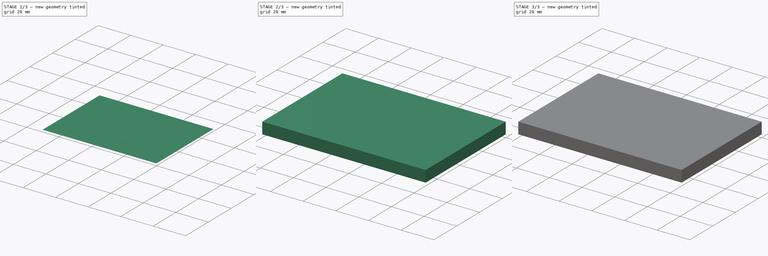
[diagram: build sequence overview — one tinted view per stage of 3, left to right]
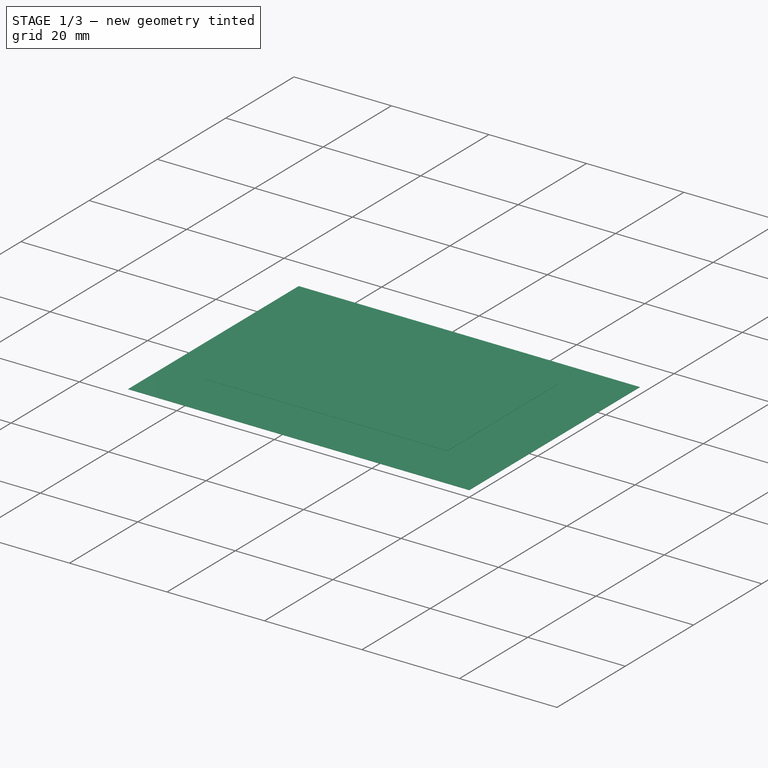
[diagram: stage 1 of 3 — iso view after this stage's code; geometry added in this stage tinted green]
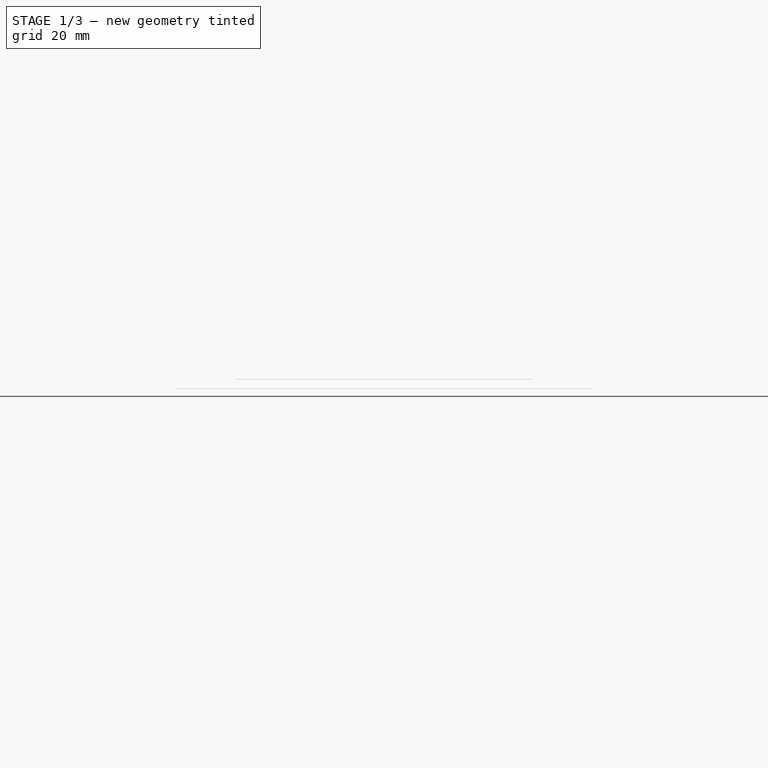
[diagram: stage 1 of 3 — front view after this stage's code; geometry added in this stage tinted green]
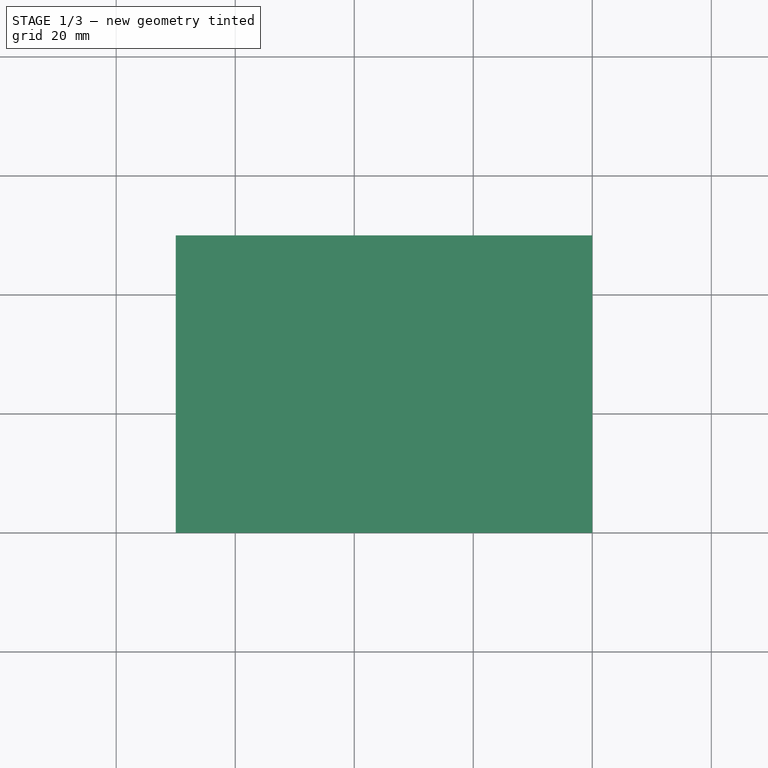
[diagram: stage 1 of 3 — top view after this stage's code; geometry added in this stage tinted green]
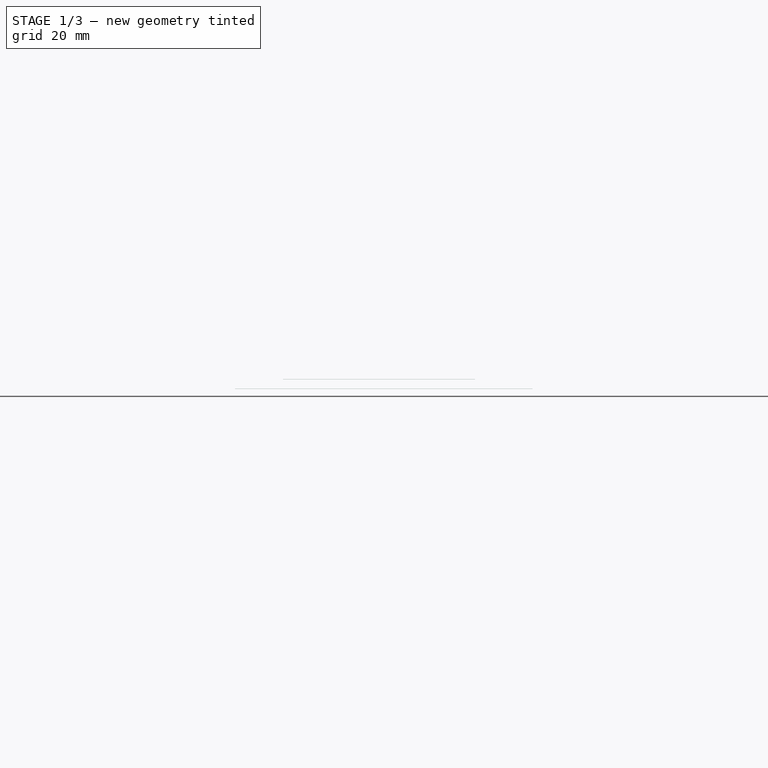
[diagram: stage 1 of 3 — right view after this stage's code; geometry added in this stage tinted green]
FCSTD DOCUMENT  (FreeCAD 0.18R16131 (Git))
Label: Patch Antenna 2
License: All rights reserved
LicenseURL: http://en.wikipedia.org/wiki/All_rights_reserved
objects: Part::Part2DObjectPython×6, Part::Extrusion×6, Sketcher::SketchObject×1, Part::Fuse×1
note: 14 computed .brp shape members not serialized (recipe doc carries the construction recipe); baked Part::Feature solids carry a one-line shape summary decoded from their .brp

FEATURE [Part::Extrusion] Extrude004  label="atnenna"
  Base = -> Rectangle
  Dir = (0,0,1)
  DirMode = 2
  FaceMakerClass = Part::FaceMakerBullseye
  LengthFwd = 0.035
  LengthRev = 0
  Solid = false
  Symmetric = false
FEATURE [Part::Extrusion] Extrude005  label="gnd001"
  Base = -> Rectangle002
  Dir = (0,0,1)
  DirMode = 2
  FaceMakerClass = Part::FaceMakerBullseye
  LengthFwd = 0.035
  LengthRev = 0
  Reversed = true
  Solid = false
  Symmetric = false
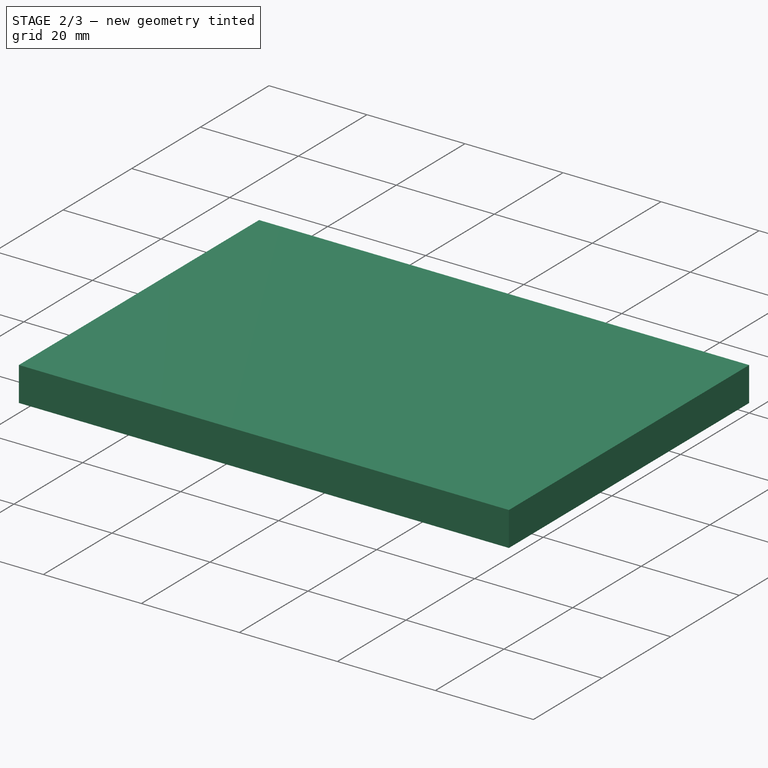
[diagram: stage 2 of 3 — iso view after this stage's code; geometry added in this stage tinted green]
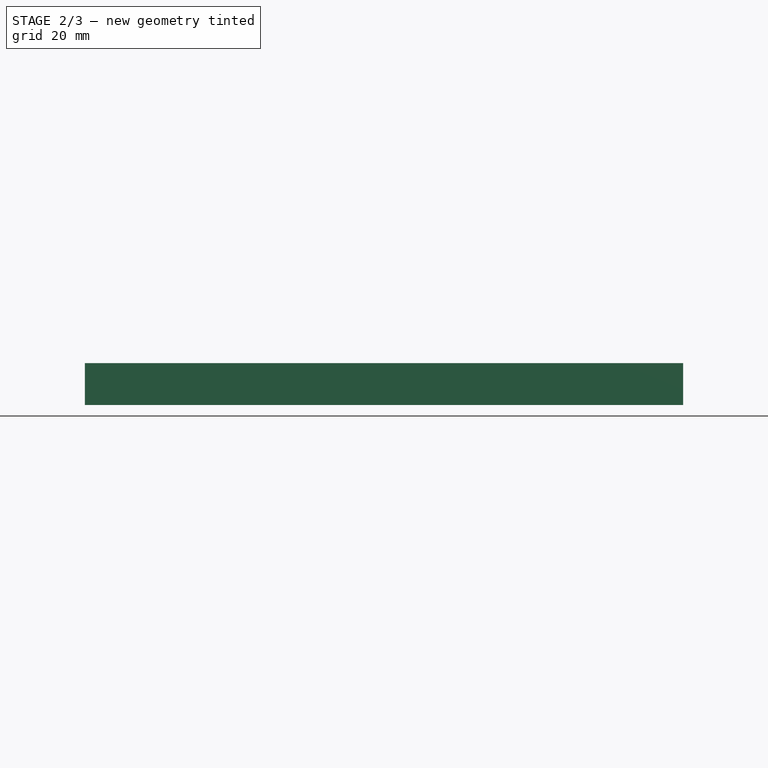
[diagram: stage 2 of 3 — front view after this stage's code; geometry added in this stage tinted green]
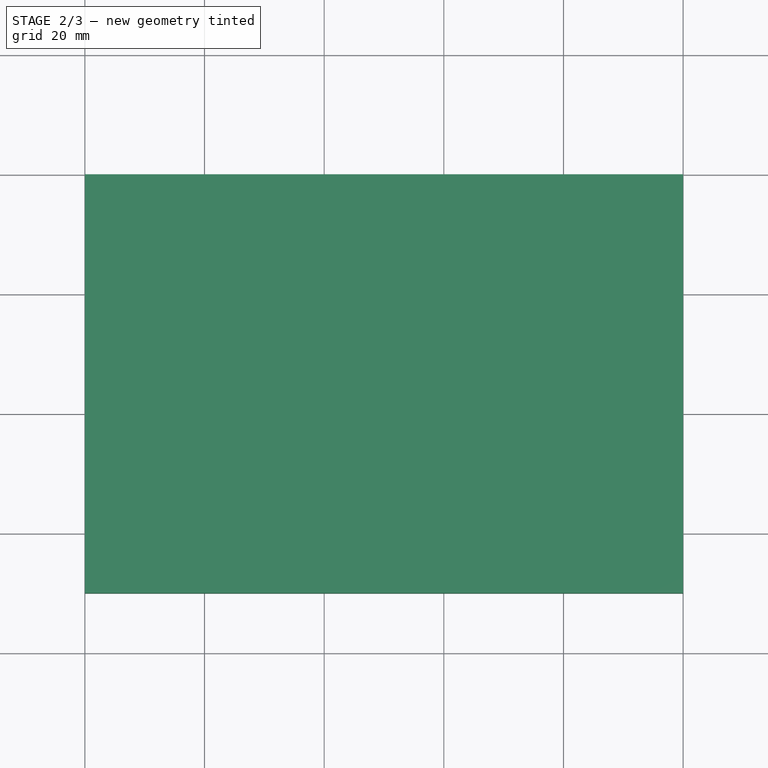
[diagram: stage 2 of 3 — top view after this stage's code; geometry added in this stage tinted green]
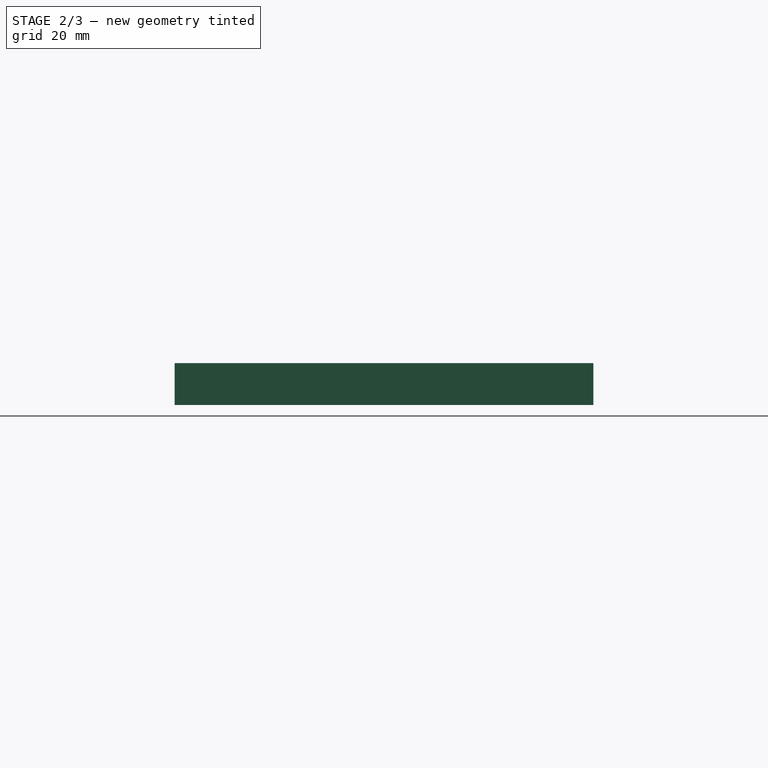
[diagram: stage 2 of 3 — right view after this stage's code; geometry added in this stage tinted green]
FEATURE [Part::Part2DObjectPython] Rectangle004  label="air"  # Draft 2D object (typed FeaturePython)
  ChamferSize = 0
  Columns = 1
  FilletRadius = 0
  Height = 70
  Length = 100
  MakeFace = true
  Placement = pos=(0,-70,0) rot=(0,0,1;0rad)
  Rows = 1
FEATURE [Part::Extrusion] Extrude002  label="air box top"
  Base = -> Rectangle004
  Dir = (0,0,1)
  DirMode = 2
  FaceMakerClass = Part::FaceMakerBullseye
  LengthFwd = 4
  LengthRev = 0
  Solid = false
  Symmetric = false
FEATURE [Part::Part2DObjectPython] Rectangle005  label="air002"  # Draft 2D object (typed FeaturePython)
  ChamferSize = 0
  Columns = 1
  FilletRadius = 0
  Height = 70
  Length = 100
  MakeFace = true
  Placement = pos=(0,-70,0) rot=(0,0,1;0rad)
  Rows = 1
FEATURE [Part::Extrusion] Extrude003  label="air box bottom"
  Base = -> Rectangle005
  Dir = (0,0,1)
  DirMode = 2
  FaceMakerClass = Part::FaceMakerBullseye
  LengthFwd = 3
  LengthRev = 0
  Reversed = true
  Solid = false
  Symmetric = false
FEATURE [Part::Fuse] Fusion  label="air box"
  Base = -> Extrude002
  Tool = -> Extrude003
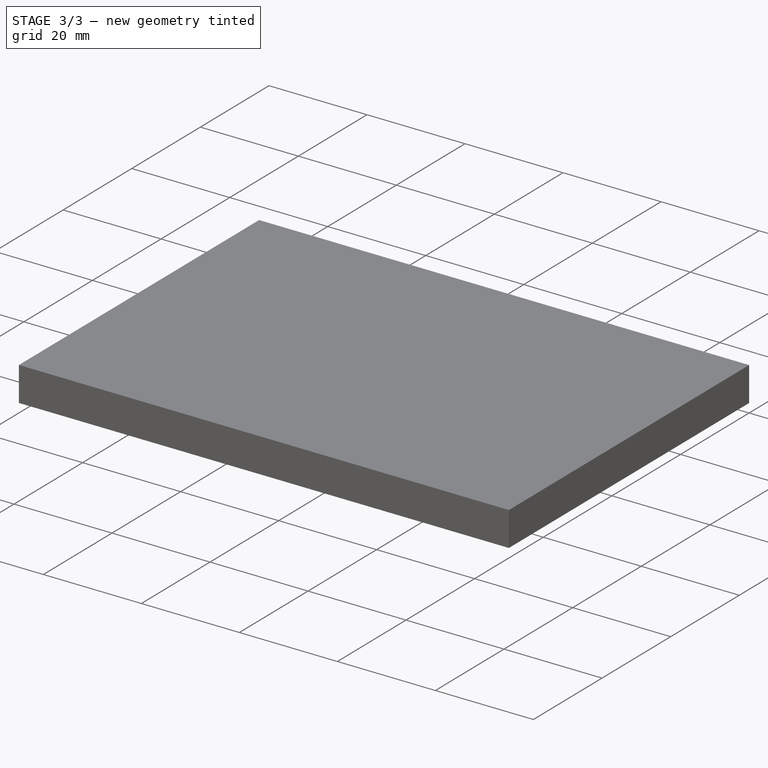
[diagram: stage 3 of 3 — iso view after this stage's code; geometry added in this stage tinted green]
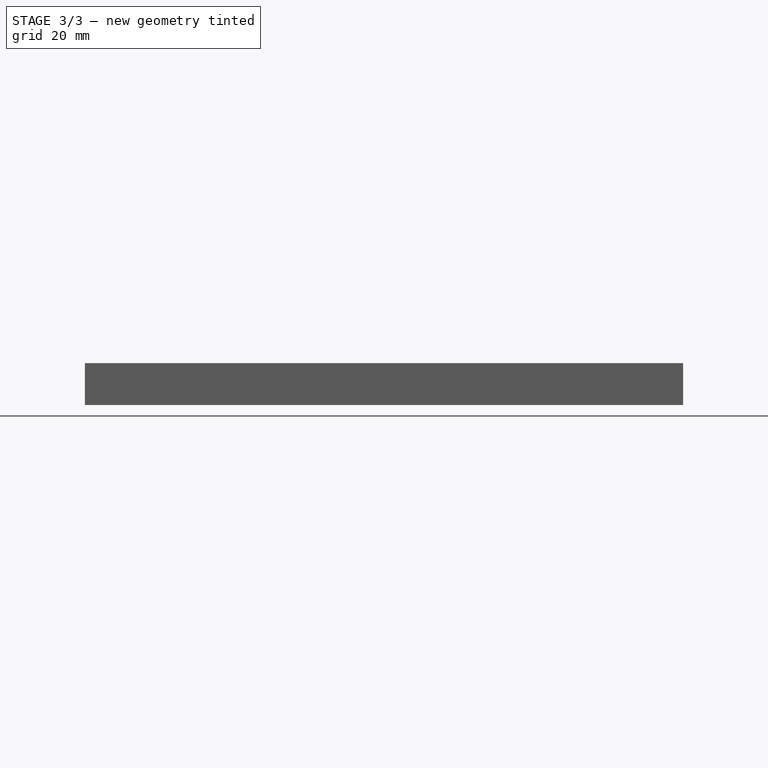
[diagram: stage 3 of 3 — front view after this stage's code; geometry added in this stage tinted green]
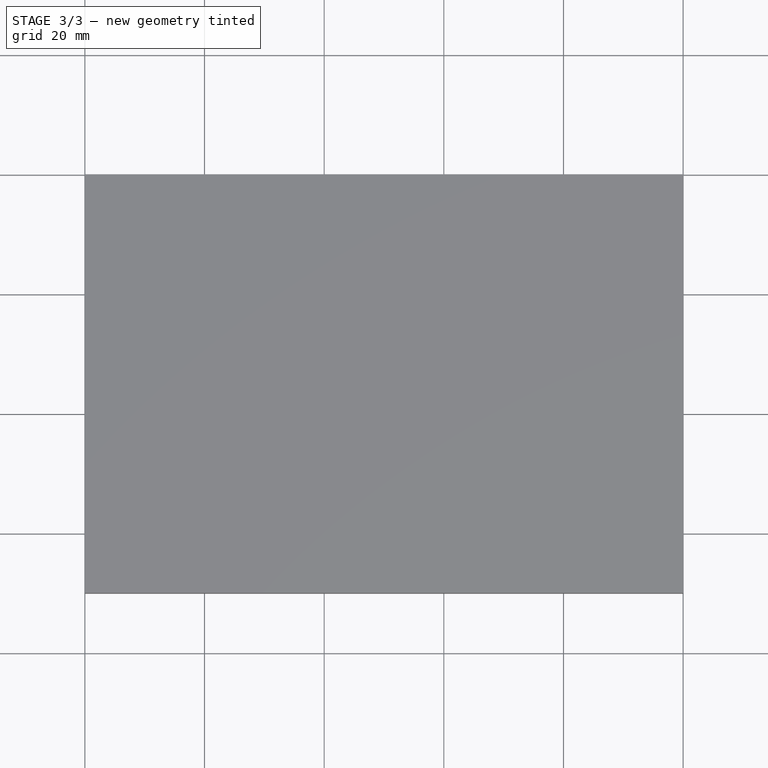
[diagram: stage 3 of 3 — top view after this stage's code; geometry added in this stage tinted green]
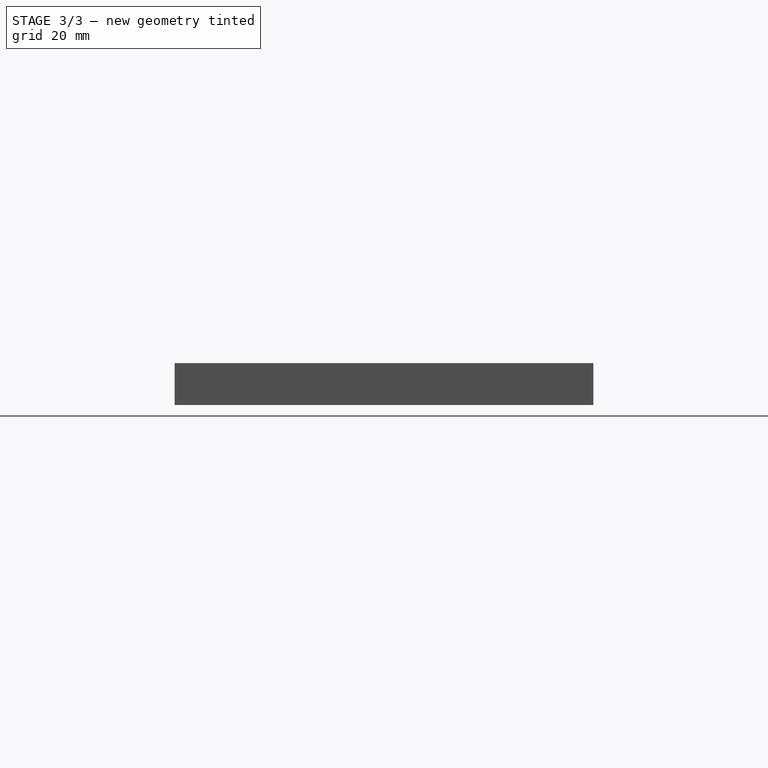
[diagram: stage 3 of 3 — right view after this stage's code; geometry added in this stage tinted green]
FEATURE [Sketcher::SketchObject] Sketch  label="patch"
  sketch-geometry (17):
    g0: GeomPoint X=20 Y=-20 Z=0
    g1: LineSegment StartX=20 StartY=-20 StartZ=0 EndX=69.9 EndY=-20 EndZ=0
    g2: LineSegment StartX=69.9 StartY=-20 StartZ=0 EndX=69.9 EndY=-52 EndZ=0
    g3: LineSegment StartX=69.9 StartY=-52 StartZ=0 EndX=20 EndY=-52 EndZ=0
    g4: LineSegment StartX=20 StartY=-52 StartZ=0 EndX=20 EndY=-20 EndZ=0
    g5: GeomPoint X=10 Y=-10 Z=0
    g6: LineSegment StartX=10 StartY=-10 StartZ=0 EndX=80 EndY=-10 EndZ=0
    g7: LineSegment StartX=80 StartY=-10 StartZ=0 EndX=80 EndY=-60 EndZ=0
    g8: LineSegment StartX=80 StartY=-60 StartZ=0 EndX=10 EndY=-60 EndZ=0
    g9: LineSegment StartX=10 StartY=-60 StartZ=0 EndX=10 EndY=-10 EndZ=0
    g10: LineSegment StartX=43 StartY=-51.5 StartZ=0 EndX=47 EndY=-51.5 EndZ=0
    g11: LineSegment StartX=47 StartY=-51.5 StartZ=0 EndX=47 EndY=-52 EndZ=0
    g12: LineSegment StartX=47 StartY=-52 StartZ=0 EndX=43 EndY=-52 EndZ=0
    g13: LineSegment StartX=43 StartY=-52 StartZ=0 EndX=43 EndY=-51.5 EndZ=0
    g14: LineSegment StartX=43 StartY=-51.5 StartZ=0 EndX=47 EndY=-52 EndZ=0
    g15: LineSegment StartX=47 StartY=-51.5 StartZ=0 EndX=43 EndY=-52 EndZ=0
    g16: GeomPoint X=45 Y=-51.75 Z=0
  constraints (44):
    c: Distance(g0,g-2) = 20
    c: Distance(g0,g-1) = 20
    c: Coincident(g1,g0)
    c: Horizontal(g1)
    c: Coincident(g2,g1)
    c: Vertical(g2)
    c: Coincident(g3,g2)
    c: Horizontal(g3)
    c: Coincident(g4,g3)
    c: Coincident(g4,g0)
    c: Vertical(g4)
    c: Distance(g1) = 49.9
    c: Distance(g2) = 32
    c: Distance(g5,g-2) = 10
    c: Distance(g5,g-1) = 10
    c: Coincident(g6,g7)
    c: Coincident(g7,g8)
    c: Coincident(g8,g9)
    c: Coincident(g9,g6)
    c: Horizontal(g6)
    c: Horizontal(g8)
    c: Vertical(g7)
    c: Vertical(g9)
    c: Coincident(g6,g5)
    c: Distance(g8) = 70
    c: Distance(g7) = 50
    c: Coincident(g10,g11)
    c: Coincident(g11,g12)
    c: Coincident(g12,g13)
    c: Coincident(g13,g10)
    c: Horizontal(g10)
    c: Horizontal(g12)
    c: Vertical(g11)
    c: Vertical(g13)
    c: Distance(g11) = 0.5
    c: Distance(g10) = 4
    c: Coincident(g14,g10)
    c: Coincident(g14,g11)
    c: Coincident(g15,g10)
    c: Coincident(g15,g12)
    c: PointOnObject(g16,g14)
    c: PointOnObject(g16,g15)
    c: PointOnObject(g11,g3)
    c: Distance(g16,g4) = 25
FEATURE [Part::Part2DObjectPython] Rectangle  label="antenna"  # Draft 2D object (typed FeaturePython)
  ChamferSize = 0
  Columns = 1
  FilletRadius = 0
  Height = 32.3
  Length = 49.9
  MakeFace = true
  Placement = pos=(20.023,-52,1.5) rot=(0,0,1;0rad)
  Rows = 1
FEATURE [Part::Part2DObjectPython] Rectangle001  label="excitation"  # Draft 2D object (typed FeaturePython)
  ChamferSize = 0
  Columns = 1
  FilletRadius = 0
  Height = 0.5
  Length = 4
  MakeFace = true
  Placement = pos=(43,-52,0) rot=(0,0,1;0rad)
  Rows = 1
FEATURE [Part::Part2DObjectPython] Rectangle002  label="gnd"  # Draft 2D object (typed FeaturePython)
  ChamferSize = 0
  Columns = 1
  FilletRadius = 0
  Height = 50
  Length = 70
  MakeFace = true
  Placement = pos=(10,-60,0) rot=(0,0,1;0rad)
  Rows = 1
FEATURE [Part::Part2DObjectPython] Rectangle003  label="substrate"  # Draft 2D object (typed FeaturePython)
  ChamferSize = 0
  Columns = 1
  FilletRadius = 0
  Height = 50
  Length = 70
  MakeFace = true
  Placement = pos=(10,-60,0) rot=(0,0,1;0rad)
  Rows = 1
FEATURE [Part::Extrusion] Extrude  label="substrate box"
  Base = -> Rectangle003
  Dir = (0,0,1)
  DirMode = 2
  FaceMakerClass = Part::FaceMakerBullseye
  LengthFwd = 1.5
  LengthRev = 0
  Solid = false
  Symmetric = false
FEATURE [Part::Extrusion] Extrude001  label="excitation box"
  Base = -> Rectangle001
  Dir = (0,0,1)
  DirMode = 2
  FaceMakerClass = Part::FaceMakerBullseye
  LengthFwd = 1.5
  LengthRev = 0
  Solid = false
  Symmetric = false
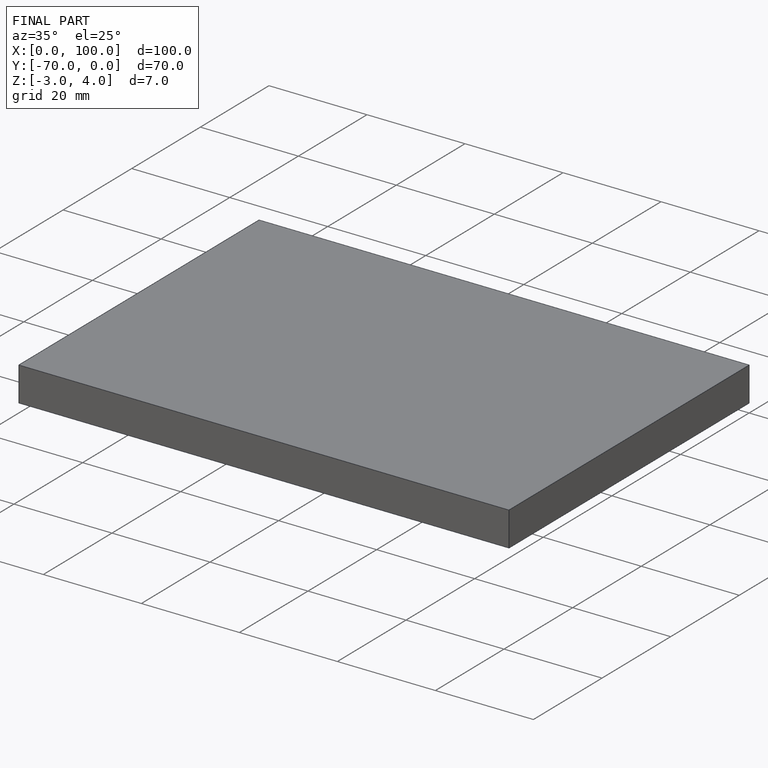
[diagram: finished part — iso view with bounding-box wireframe]
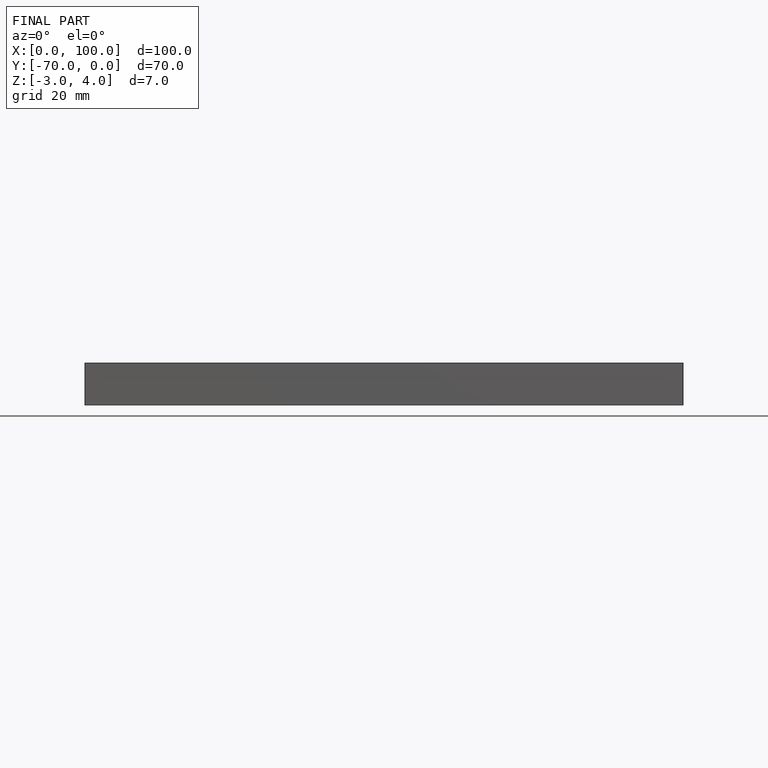
[diagram: finished part — front view with bounding-box wireframe]
